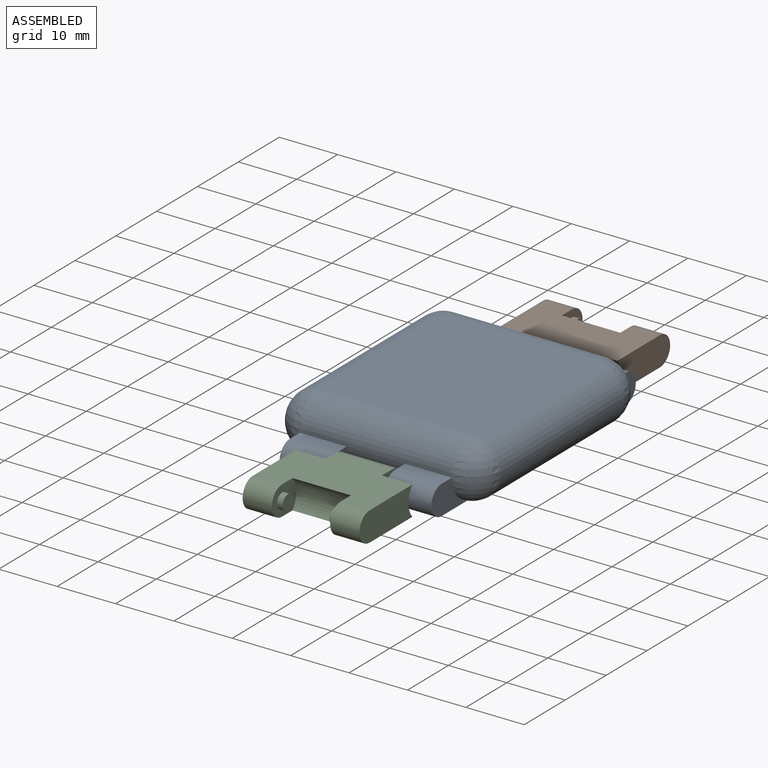
[diagram: assembled view]
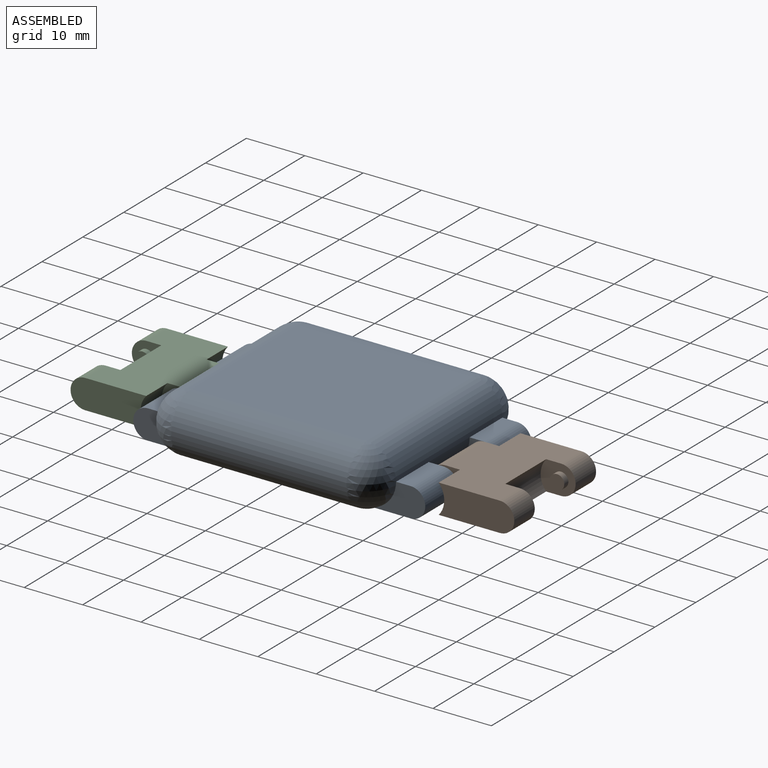
[diagram: assembled view, second angle]
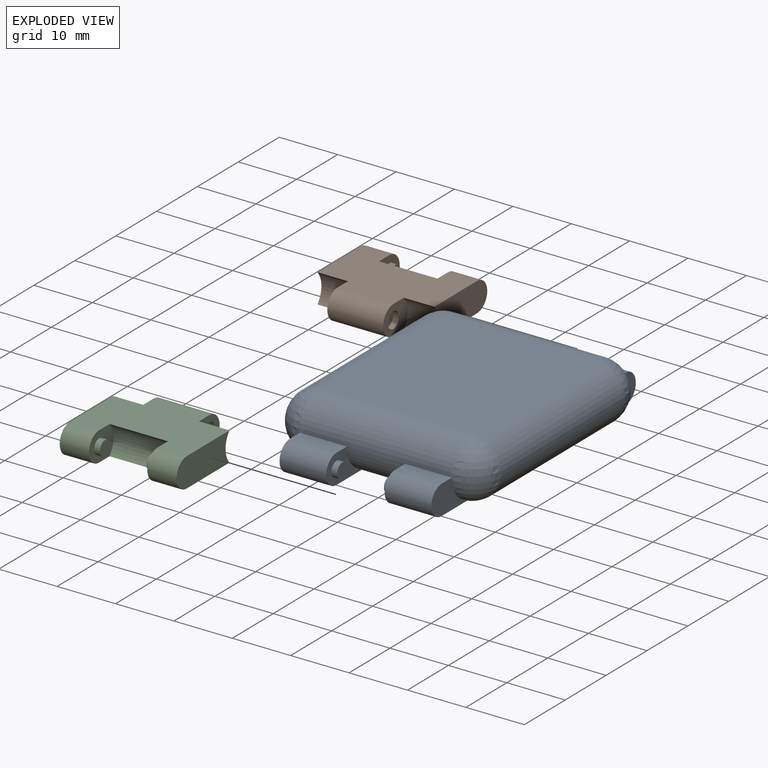
[diagram: exploded view]
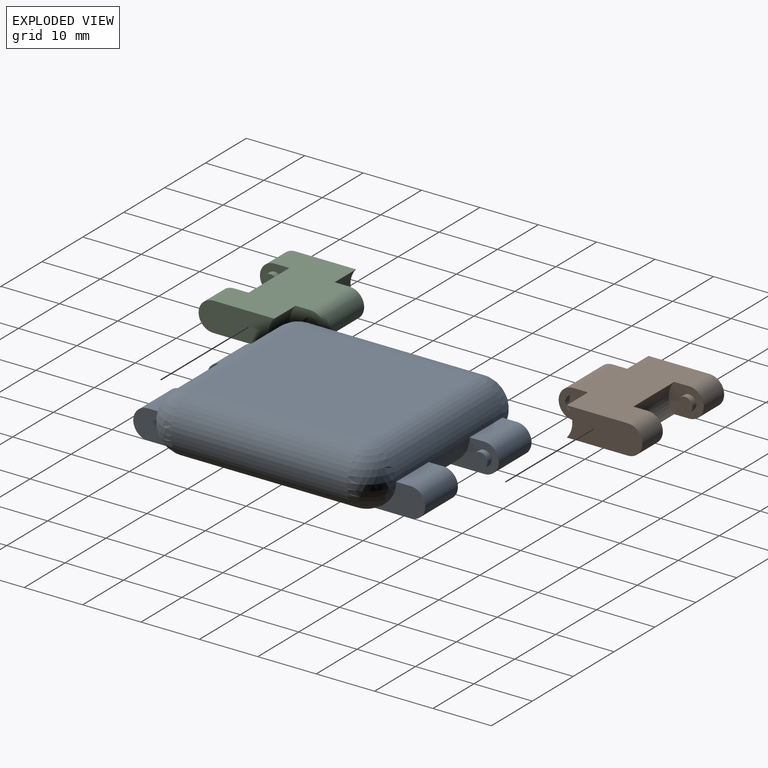
[diagram: exploded view, second angle]
ASSEMBLY  parts=3 mates=2
PART A: 34 faces, bbox 36x50x10 mm
  f0: cylinder r=5mm len=26mm, axis (-1,0,0), area 282.7mm2, adj f2,f3,f8,f9,f23,f24,f26,f28
  f1: cylinder r=5mm len=26mm, axis (1,0,0), area 282.7mm2, adj f2,f3,f4,f5,f10,f12,f15,f16
  f2: plane 45x26mm, normal (0,0,-1), area 1020mm2, adj f0,f1,f6,f7,f11,f12,f13,f14
  f3: plane 30x26mm, normal (0,0,1), area 780mm2, adj f0,f1,f6,f7
  f4: sphere r=5mm, area 78.5mm2, adj f1,f6,f13
  f5: sphere r=5mm, area 78.5mm2, adj f1,f7,f17
  f6: cylinder r=5mm len=30mm, axis (0,1,0), area 471.2mm2, adj f2,f3,f4,f8
  f7: cylinder r=5mm len=30mm, axis (0,-1,0), area 471.2mm2, adj f2,f3,f5,f9
  f8: sphere r=5mm, area 78.5mm2, adj f0,f6,f25
  f9: sphere r=5mm, area 78.5mm2, adj f0,f7,f29
  f10: plane 8x2.5mm, normal (0,0,1), area 20mm2, adj f1,f11,f12,f13
  f11: cylinder r=2.5mm len=8mm, axis (1,0,0), area 62.8mm2, adj f2,f10,f12,f13
  f12: plane 10x5mm, normal (-1,0,0), area 22.8mm2, adj f1,f2,f10,f11,f20
  f13: plane 10x5mm, normal (1,0,0), area 27.7mm2, adj f2,f4,f10,f11
  f14: cylinder r=2.5mm len=8mm, axis (-1,0,0), area 62.8mm2, adj f2,f15,f16,f17
  f15: plane 8x2.5mm, normal (0,0,1), area 20mm2, adj f1,f14,f16,f17
  f16: plane 10x5mm, normal (1,0,0), area 22.8mm2, adj f1,f2,f14,f15,f18
  f17: plane 10x5mm, normal (-1,0,0), area 27.7mm2, adj f2,f5,f14,f15
  f18: cylinder r=1.25mm len=2.5mm, axis (-1,0,0), area 7.9mm2, adj f16,f19
  f19: plane 2.5x2.5mm, normal (1,0,0), area 4.9mm2, adj f18
  f20: cylinder r=1.25mm len=2.5mm, axis (1,0,0), area 7.9mm2, adj f12,f21
  f21: plane 2.5x2.5mm, normal (-1,0,0), area 4.9mm2, adj f20
  f22: cylinder r=2.5mm len=8mm, axis (1,0,0), area 62.8mm2, adj f2,f23,f24,f25
  f23: plane 8x2.5mm, normal (0,0,1), area 20mm2, adj f0,f22,f24,f25
  f24: plane 10x5mm, normal (-1,0,0), area 22.8mm2, adj f0,f2,f22,f23,f32
  f25: plane 10x5mm, normal (1,0,0), area 27.7mm2, adj f2,f8,f22,f23
  f26: plane 8x2.5mm, normal (0,0,1), area 20mm2, adj f0,f27,f28,f29
  f27: cylinder r=2.5mm len=8mm, axis (-1,0,0), area 62.8mm2, adj f2,f26,f28,f29
  f28: plane 10x5mm, normal (1,0,0), area 22.8mm2, adj f0,f2,f26,f27,f30
  f29: plane 10x5mm, normal (-1,0,0), area 27.7mm2, adj f2,f9,f26,f27
  f30: cylinder r=1.25mm len=2.5mm, axis (-1,0,0), area 7.9mm2, adj f28,f31
  f31: plane 2.5x2.5mm, normal (1,0,0), area 4.9mm2, adj f30
  f32: cylinder r=1.25mm len=2.5mm, axis (1,0,0), area 7.9mm2, adj f24,f33
  f33: plane 2.5x2.5mm, normal (-1,0,0), area 4.9mm2, adj f32
PART B: 22 faces, bbox 20x18x5 mm
  f0: plane 20x13mm, normal (0,0,-1), area 208mm2, adj f1,f2,f4,f5,f6,f7,f8,f13
  f1: cylinder r=2.5mm len=9.56mm, axis (-1,0,0), area 75.1mm2, adj f0,f3,f8,f17
  f2: cylinder r=2.5mm len=5mm, axis (-1,0,0), area 39.3mm2, adj f0,f3,f4,f6
  f3: plane 20x13mm, normal (0,0,1), area 208mm2, adj f1,f2,f4,f5,f6,f7,f8,f13
  f4: plane 12.96x5mm, normal (1,0,0), area 58.8mm2, adj f0,f2,f3,f7
  f5: cylinder r=3.75mm len=10mm, axis (-1,0,0), area 54.7mm2, adj f0,f3,f6,f15
  f6: plane 6x5mm, normal (-1,0,0), area 20.9mm2, adj f0,f2,f3,f5,f11
  f7: cylinder r=3.75mm len=5.22mm, axis (1,0,0), area 28.6mm2, adj f0,f3,f4,f8
  f8: plane 6x5mm, normal (1,0,0), area 20mm2, adj f0,f1,f3,f7,f9
  f9: cylinder r=1.36mm len=2.72mm, axis (1,0,0), area 8.5mm2, adj f8,f10
  f10: plane 2.72x2.72mm, normal (1,0,0), area 5.8mm2, adj f9
  f11: cylinder r=1.25mm len=2.5mm, axis (1,0,0), area 7.9mm2, adj f6,f12
  f12: plane 2.5x2.5mm, normal (-1,0,0), area 4.9mm2, adj f11
  f13: cylinder r=2.5mm len=5mm, axis (1,0,0), area 39.3mm2, adj f0,f3,f14,f15
  f14: plane 12.96x5mm, normal (-1,0,0), area 58.8mm2, adj f0,f3,f13,f16
  f15: plane 6x5mm, normal (1,0,0), area 20.9mm2, adj f0,f3,f5,f13,f20
  f16: cylinder r=3.75mm len=5.22mm, axis (-1,0,0), area 28.6mm2, adj f0,f3,f14,f17
  f17: plane 6x5mm, normal (-1,0,0), area 20mm2, adj f0,f1,f3,f16,f18
  f18: cylinder r=1.36mm len=2.72mm, axis (-1,0,0), area 8.5mm2, adj f17,f19
  f19: plane 2.72x2.72mm, normal (-1,0,0), area 5.8mm2, adj f18
  f20: cylinder r=1.25mm len=2.5mm, axis (-1,0,0), area 7.9mm2, adj f15,f21
  f21: plane 2.5x2.5mm, normal (1,0,0), area 4.9mm2, adj f20
PART C: same geometry as B
PLACE A t=(19.36,0.32,29.9)mm
PLACE B t=(19.14,29.32,27.4)mm
PLACE C rot(axis=(1,0,0),180deg) t=(19.14,-28.68,27.4)mm
MATE revolute A.f22 <-> B.f9  axis (1,0,0) through (15.36,22.82,27.4)mm
MATE revolute C.f9 <-> A.f11  axis (-1,0,0) through (15.36,-22.18,27.4)mm
